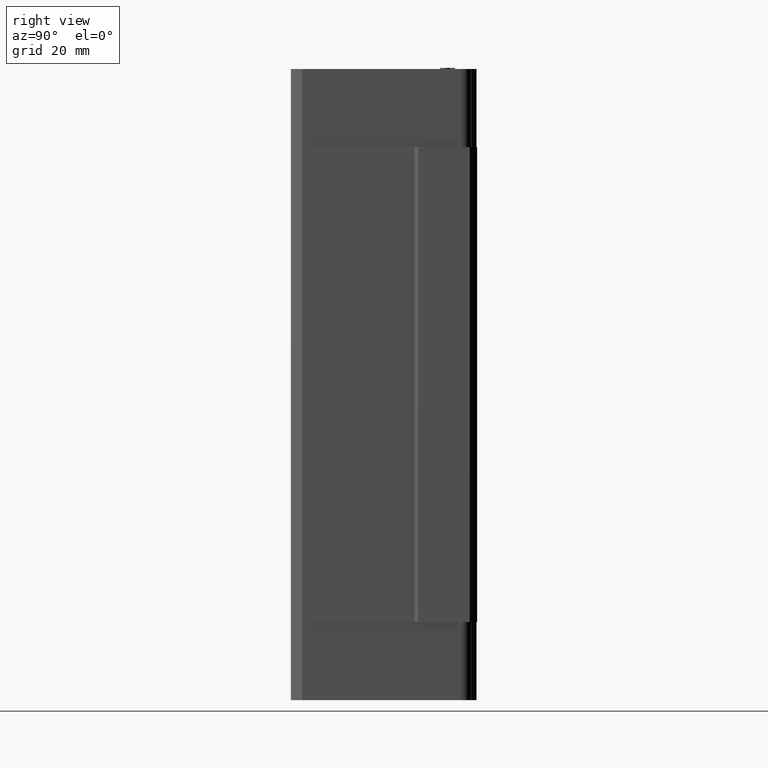
[diagram: clean part render]
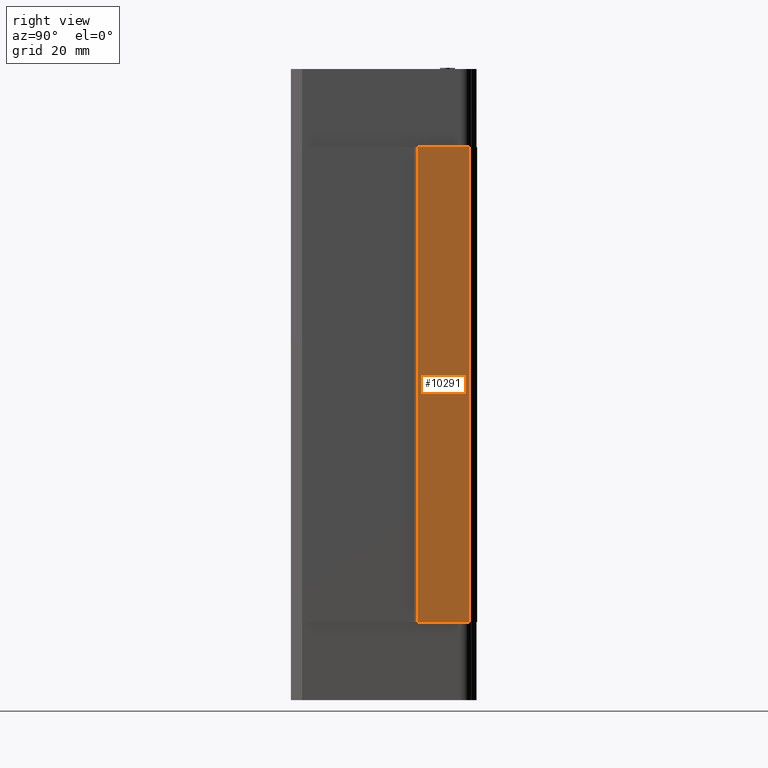
[diagram: same view with one face highlighted and labeled with its STEP entity id]
A machine part, right view. The second image highlights one B-rep face of the part: STEP entity #10291.
In plain terms, the highlighted planar face has unit normal (1, 0, 0).
Its self-contained STEP definition (entity closure, byte-faithful):
#2134 = VERTEX_POINT ( 'NONE', #5235 ) ;
#2152 = EDGE_CURVE ( 'NONE', #2153, #2134, #5271, .T. ) ;
#2153 = VERTEX_POINT ( 'NONE', #5266 ) ;
#5235 = CARTESIAN_POINT ( 'NONE',  ( 42.99999999999997200, 6.000000000000036400, -64.40000000000000600 ) ) ;
#5266 = CARTESIAN_POINT ( 'NONE',  ( 42.99999999999993600, 6.000000000000071900, 64.40000000000000600 ) ) ;
#5267 = DIRECTION ( 'NONE',  ( 0.0000000000000000000, 0.0000000000000000000, -1.000000000000000000 ) ) ;
#5268 = VECTOR ( 'NONE', #5267, 1000.000000000000000 ) ;
#5269 = CARTESIAN_POINT ( 'NONE',  ( 43.00000000000000000, 6.000000000000000000, -64.40000000000000600 ) ) ;
#5271 = LINE ( 'NONE', #5269, #5268 ) ;
#7673 = DIRECTION ( 'NONE',  ( 0.0000000000000000000, 1.000000000000000000, 0.0000000000000000000 ) ) ;
#7674 = VECTOR ( 'NONE', #7673, 1000.000000000000000 ) ;
#7675 = CARTESIAN_POINT ( 'NONE',  ( 43.00000000000000000, 0.0000000000000000000, 64.40000000000000600 ) ) ;
#7676 = LINE ( 'NONE', #7675, #7674 ) ;
#7677 = CARTESIAN_POINT ( 'NONE',  ( 43.00000000000003600, 20.00000000000003900, 64.40000000000000600 ) ) ;
#7697 = DIRECTION ( 'NONE',  ( 0.0000000000000000000, 0.0000000000000000000, -1.000000000000000000 ) ) ;
#7698 = DIRECTION ( 'NONE',  ( 1.000000000000000000, 0.0000000000000000000, 0.0000000000000000000 ) ) ;
#7699 = CARTESIAN_POINT ( 'NONE',  ( 43.00000000000000000, 16.00000000000000000, -64.40000000000000600 ) ) ;
#7700 = AXIS2_PLACEMENT_3D ( 'NONE', #7699, #7698, #7697 ) ;
#7701 = PLANE ( 'NONE',  #7700 ) ;
#7703 = FACE_OUTER_BOUND ( 'NONE', #10314, .T. ) ;
#7731 = CARTESIAN_POINT ( 'NONE',  ( 43.00000000000003600, 20.00000000000003900, -64.40000000000000600 ) ) ;
#7743 = DIRECTION ( 'NONE',  ( 0.0000000000000000000, 0.0000000000000000000, 1.000000000000000000 ) ) ;
#7744 = VECTOR ( 'NONE', #7743, 1000.000000000000000 ) ;
#7745 = CARTESIAN_POINT ( 'NONE',  ( 43.00000000000014200, 20.00000000000013900, 64.40000000000000600 ) ) ;
#7746 = LINE ( 'NONE', #7745, #7744 ) ;
#7753 = DIRECTION ( 'NONE',  ( 0.0000000000000000000, 1.000000000000000000, 0.0000000000000000000 ) ) ;
#7754 = VECTOR ( 'NONE', #7753, 1000.000000000000000 ) ;
#7755 = CARTESIAN_POINT ( 'NONE',  ( 43.00000000000000000, 0.0000000000000000000, -64.40000000000000600 ) ) ;
#7756 = LINE ( 'NONE', #7755, #7754 ) ;
#10270 = VERTEX_POINT ( 'NONE', #7677 ) ;
#10271 = ORIENTED_EDGE ( 'NONE', *, *, #10295, .T. ) ;
#10272 = EDGE_CURVE ( 'NONE', #2153, #10270, #7676, .T. ) ;
#10284 = ORIENTED_EDGE ( 'NONE', *, *, #10272, .F. ) ;
#10291 = ADVANCED_FACE ( 'NONE', ( #7703 ), #7701, .T. ) ;
#10295 = EDGE_CURVE ( 'NONE', #2134, #10309, #7756, .T. ) ;
#10299 = EDGE_CURVE ( 'NONE', #10309, #10270, #7746, .T. ) ;
#10300 = ORIENTED_EDGE ( 'NONE', *, *, #10299, .T. ) ;
#10309 = VERTEX_POINT ( 'NONE', #7731 ) ;
#10311 = ORIENTED_EDGE ( 'NONE', *, *, #2152, .T. ) ;
#10314 = EDGE_LOOP ( 'NONE', ( #10311, #10271, #10300, #10284 ) ) ;